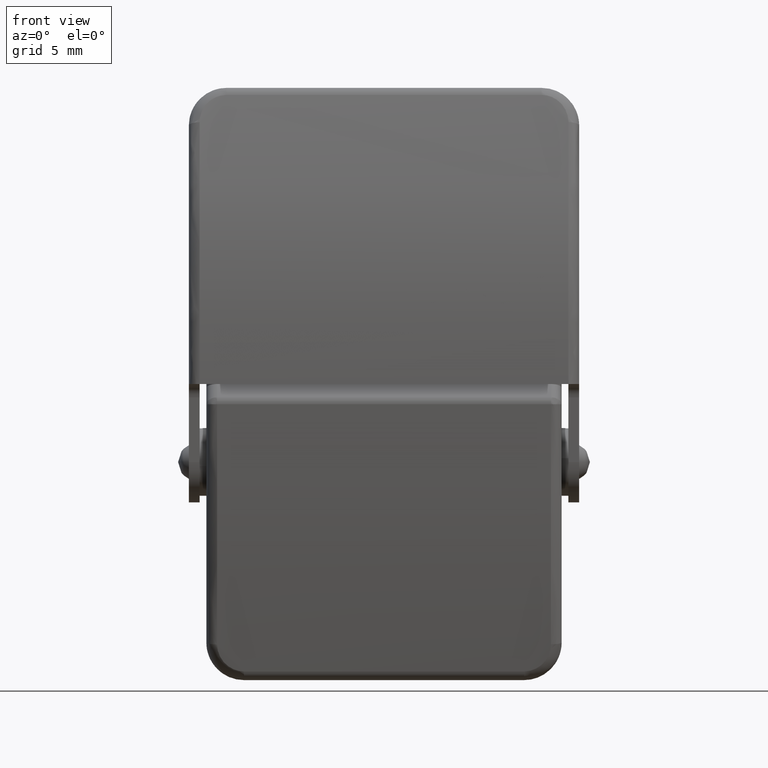
[diagram: clean part render]
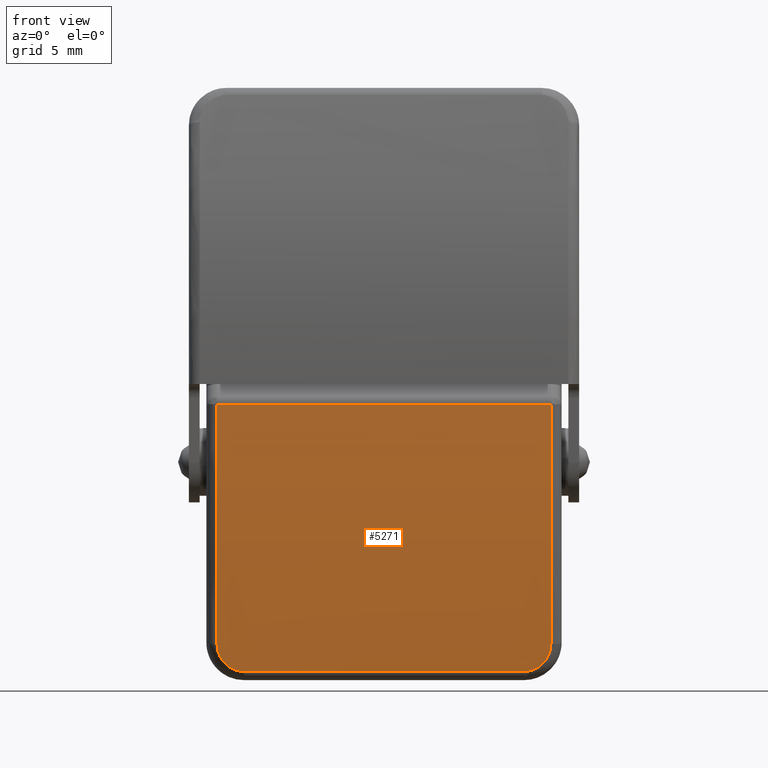
[diagram: same view with one face highlighted and labeled with its STEP entity id]
A machine part, front view. The second image highlights one B-rep face of the part: STEP entity #5271.
In plain terms, the highlighted face is a freeform B-spline surface patch.
Its self-contained STEP definition (entity closure, byte-faithful):
#2777=CARTESIAN_POINT('',(-12.400000000000000,-9.0,11.800000000014800));
#2778=VERTEX_POINT('',#2777);
#2889=CARTESIAN_POINT('',(-12.400000000000000,-7.408453820425390,-6.041600000000091));
#2890=VERTEX_POINT('',#2889);
#2904=CARTESIAN_POINT('',(-12.400000000000000,-8.999999999999995,11.800000000014800));
#2905=CARTESIAN_POINT('',(-12.399999999999999,-8.999999999999995,2.808213674741794));
#2906=CARTESIAN_POINT('',(-12.400000000000000,-7.408453820425390,-6.041600000000091));
#2914=(BOUNDED_CURVE()B_SPLINE_CURVE(2,(#2904,#2905,#2906),.UNSPECIFIED.,.F.,.U.)CURVE()GEOMETRIC_REPRESENTATION_ITEM()QUASI_UNIFORM_CURVE()RATIONAL_B_SPLINE_CURVE((1.0,0.996044891406283,1.0))REPRESENTATION_ITEM(''));
#2915=EDGE_CURVE('',#2778,#2890,#2914,.T.);
#3089=CARTESIAN_POINT('',(-10.400000000000000,-7.024671627278450,-8.057600000000120));
#3090=VERTEX_POINT('',#3089);
#3104=CARTESIAN_POINT('',(-12.400000000000000,-7.408453820425390,-6.041600000000091));
#3105=CARTESIAN_POINT('',(-12.400000000000000,-7.384781509231609,-6.173230200872716));
#3106=CARTESIAN_POINT('',(-12.387333503156210,-7.361225571061289,-6.302710509337305));
#3107=CARTESIAN_POINT('',(-12.350092933571300,-7.326079627977496,-6.493838681982470));
#3108=CARTESIAN_POINT('',(-12.334617170217410,-7.314396268245638,-6.557029017454179));
#3109=CARTESIAN_POINT('',(-12.297403760359090,-7.291103561235804,-6.682349877191401));
#3110=CARTESIAN_POINT('',(-12.275533700067079,-7.279443793476466,-6.744746532024878));
#3111=CARTESIAN_POINT('',(-12.201656044778900,-7.245280921151413,-6.926653537102823));
#3112=CARTESIAN_POINT('',(-12.141294002208200,-7.223411535085743,-7.041877118865590));
#3113=CARTESIAN_POINT('',(-12.034166509575760,-7.192052024737142,-7.205702493821606));
#3114=CARTESIAN_POINT('',(-11.995674245672831,-7.181841440868965,-7.258798979994008));
#3115=CARTESIAN_POINT('',(-11.912890299326300,-7.161944479075046,-7.361844861745701));
#3116=CARTESIAN_POINT('',(-11.869160447902400,-7.152396259023758,-7.411078737354185));
#3117=CARTESIAN_POINT('',(-11.731714835326340,-7.125078811602674,-7.551430663974785));
#3118=CARTESIAN_POINT('',(-11.631560833936261,-7.108565308232416,-7.635572270756618));
#3119=CARTESIAN_POINT('',(-11.468184367162079,-7.086529388937449,-7.747269518184527));
#3120=CARTESIAN_POINT('',(-11.411212792492099,-7.079615064853483,-7.782205446907963));
#3121=CARTESIAN_POINT('',(-11.295129573737009,-7.067031489652492,-7.845638955314545));
#3122=CARTESIAN_POINT('',(-11.235836258510799,-7.061330055803881,-7.874300597759527));
#3123=CARTESIAN_POINT('',(-11.054261145647001,-7.045991463331419,-7.951271080290924));
#3124=CARTESIAN_POINT('',(-10.928189632065690,-7.038097406539476,-7.990685828991332));
#3125=CARTESIAN_POINT('',(-10.666241956626971,-7.027368456326888,-8.044192816132059));
#3126=CARTESIAN_POINT('',(-10.533838981872000,-7.024671627278457,-8.057600000000116));
#3127=CARTESIAN_POINT('',(-10.400000000000000,-7.024671627278460,-8.057600000000120));
#3128=B_SPLINE_CURVE_WITH_KNOTS('',3,(#3104,#3105,#3106,#3107,#3108,#3109,#3110,#3111,#3112,#3113,#3114,#3115,#3116,#3117,#3118,#3119,#3120,#3121,#3122,#3123,#3124,#3125,#3126,#3127),.UNSPECIFIED.,.F.,.U.,(4,2,2,2,2,2,2,2,2,2,2,4),(0.0,0.125000000000000,0.187500000000000,0.250000000000000,0.375000000000000,0.437500000000001,0.500000000000001,0.625000000000001,0.687500000000001,0.750000000000001,0.875000000000001,1.0),.UNSPECIFIED.);
#3129=EDGE_CURVE('',#2890,#3090,#3128,.T.);
#3179=CARTESIAN_POINT('',(10.400000000000000,-7.024671627278450,-8.057600000000120));
#3180=VERTEX_POINT('',#3179);
#3194=CARTESIAN_POINT('',(-10.400000000000000,-7.024671627278450,-8.057600000000120));
#3195=CARTESIAN_POINT('',(10.400000000000000,-7.024671627278450,-8.057600000000120));
#3196=QUASI_UNIFORM_CURVE('',1,(#3194,#3195),.UNSPECIFIED.,.F.,.U.);
#3197=EDGE_CURVE('',#3090,#3180,#3196,.T.);
#3260=CARTESIAN_POINT('',(12.400000000000000,-7.408453820425380,-6.041600000000100));
#3261=VERTEX_POINT('',#3260);
#3275=CARTESIAN_POINT('',(10.400000000000000,-7.024671627278450,-8.057600000000120));
#3276=CARTESIAN_POINT('',(10.533797975516119,-7.024671627278451,-8.057600000000120));
#3277=CARTESIAN_POINT('',(10.665239573101291,-7.027366270661197,-8.044202928469522));
#3278=CARTESIAN_POINT('',(10.859025840065620,-7.035245756998791,-8.004907841710285));
#3279=CARTESIAN_POINT('',(10.923054273597590,-7.038516293288391,-7.988585022669621));
#3280=CARTESIAN_POINT('',(11.049952653031360,-7.046363657386680,-7.949349153066448));
#3281=CARTESIAN_POINT('',(11.112838015627460,-7.050952204944874,-7.926376686213682));
#3282=CARTESIAN_POINT('',(11.295461913018769,-7.066342529922090,-7.849149363792347));
#3283=CARTESIAN_POINT('',(11.410719433795320,-7.078836068437775,-7.786257621733142));
#3284=CARTESIAN_POINT('',(11.546802578076230,-7.097119903243856,-7.693589502962001));
#3285=CARTESIAN_POINT('',(11.573616109801399,-7.100911180045824,-7.674346758528401));
#3286=CARTESIAN_POINT('',(11.626425267610051,-7.108764308356337,-7.634421959727436));
#3287=CARTESIAN_POINT('',(11.652443202847699,-7.112831044970401,-7.613714774955609));
#3288=CARTESIAN_POINT('',(11.728416877925600,-7.125299462281817,-7.550116099816040));
#3289=CARTESIAN_POINT('',(11.776587744536950,-7.134009701527139,-7.505542874708971));
#3290=CARTESIAN_POINT('',(11.913911659095779,-7.161266286769614,-7.365511215648943));
#3291=CARTESIAN_POINT('',(11.995943785704609,-7.180928049966284,-7.263800329223983));
#3292=CARTESIAN_POINT('',(12.104428747501810,-7.212588519336242,-7.098424930572028));
#3293=CARTESIAN_POINT('',(12.137743270784419,-7.223394057943750,-7.041732574070399));
#3294=CARTESIAN_POINT('',(12.198349701905000,-7.245307758804886,-6.926197374566540));
#3295=CARTESIAN_POINT('',(12.253116947306710,-7.267577663510203,-6.808232043919237));
#3296=CARTESIAN_POINT('',(12.296363972222300,-7.290522078252209,-6.685466957383738));
#3297=CARTESIAN_POINT('',(12.333765085981639,-7.313797016147649,-6.560264034457684));
#3298=CARTESIAN_POINT('',(12.349577128596049,-7.325647756777786,-6.496180781361012));
#3299=CARTESIAN_POINT('',(12.387339180220570,-7.361123298118503,-6.303279365824603));
#3300=CARTESIAN_POINT('',(12.400000000000000,-7.384788269910256,-6.173192608029235));
#3301=CARTESIAN_POINT('',(12.400000000000000,-7.408453820425380,-6.041600000000100));
#3302=B_SPLINE_CURVE_WITH_KNOTS('',3,(#3275,#3276,#3277,#3278,#3279,#3280,#3281,#3282,#3283,#3284,#3285,#3286,#3287,#3288,#3289,#3290,#3291,#3292,#3293,#3294,#3295,#3296,#3297,#3298,#3299,#3300,#3301),.UNSPECIFIED.,.F.,.U.,(4,2,2,2,2,2,2,2,2,2,1,2,2,4),(0.0,0.124999999999999,0.187499999999999,0.249999999999999,0.375000000000000,0.406250000000000,0.437500000000000,0.500000000000000,0.624999999999999,0.687499999999999,0.749999999999999,0.812500000000000,0.875000000000000,1.0),.UNSPECIFIED.);
#3303=EDGE_CURVE('',#3180,#3261,#3302,.T.);
#3362=CARTESIAN_POINT('',(12.400000000000000,-9.0,11.800000000014800));
#3363=VERTEX_POINT('',#3362);
#3377=CARTESIAN_POINT('',(12.400000000000000,-7.408453820425380,-6.041600000000100));
#3378=CARTESIAN_POINT('',(12.399999999999999,-8.999999999999995,2.808213674741752));
#3379=CARTESIAN_POINT('',(12.400000000000000,-8.999999999999995,11.800000000014800));
#3387=(BOUNDED_CURVE()B_SPLINE_CURVE(2,(#3377,#3378,#3379),.UNSPECIFIED.,.F.,.U.)CURVE()GEOMETRIC_REPRESENTATION_ITEM()QUASI_UNIFORM_CURVE()RATIONAL_B_SPLINE_CURVE((1.0,0.996044891406283,1.0))REPRESENTATION_ITEM(''));
#3388=EDGE_CURVE('',#3261,#3363,#3387,.T.);
#5240=CARTESIAN_POINT('',(12.400000000000000,-9.0,11.800000000014800));
#5241=CARTESIAN_POINT('',(-12.400000000000000,-9.0,11.800000000014800));
#5242=QUASI_UNIFORM_CURVE('',1,(#5240,#5241),.UNSPECIFIED.,.F.,.U.);
#5243=EDGE_CURVE('',#3363,#2778,#5242,.T.);
#5249=CARTESIAN_POINT('',(13.020000000000007,-8.995081418286281,12.795772002550232));
#5250=CARTESIAN_POINT('',(-13.035500000000003,-8.995081418286281,12.795772002550232));
#5251=CARTESIAN_POINT('',(13.019999999999998,-9.104087451769278,1.761848582302323));
#5252=CARTESIAN_POINT('',(-13.035500000000003,-9.104087451769278,1.761848582302323));
#5253=CARTESIAN_POINT('',(13.020000000000007,-6.823375770802530,-9.034340680003743));
#5254=CARTESIAN_POINT('',(-13.035500000000006,-6.823375770802530,-9.034340680003743));
#5262=(BOUNDED_SURFACE()B_SPLINE_SURFACE(1,2,((#5249,#5251,#5253),(#5250,#5252,#5254)),.UNSPECIFIED.,.F.,.F.,.U.)B_SPLINE_SURFACE_WITH_KNOTS((2,2),(3,3),(0.0,26.055500000000009),(1.650280215883255,23.654608509397509),.UNSPECIFIED.)GEOMETRIC_REPRESENTATION_ITEM()RATIONAL_B_SPLINE_SURFACE(((0.998927424116390,0.992221291912661,0.997370574562097),(0.998927424116390,0.992221291912661,0.997370574562097)))REPRESENTATION_ITEM('')SURFACE());
#5263=ORIENTED_EDGE('',*,*,#5243,.T.);
#5264=ORIENTED_EDGE('',*,*,#2915,.T.);
#5265=ORIENTED_EDGE('',*,*,#3129,.T.);
#5266=ORIENTED_EDGE('',*,*,#3197,.T.);
#5267=ORIENTED_EDGE('',*,*,#3303,.T.);
#5268=ORIENTED_EDGE('',*,*,#3388,.T.);
#5269=EDGE_LOOP('',(#5263,#5264,#5265,#5266,#5267,#5268));
#5270=FACE_OUTER_BOUND('',#5269,.T.);
#5271=ADVANCED_FACE('',(#5270),#5262,.T.);